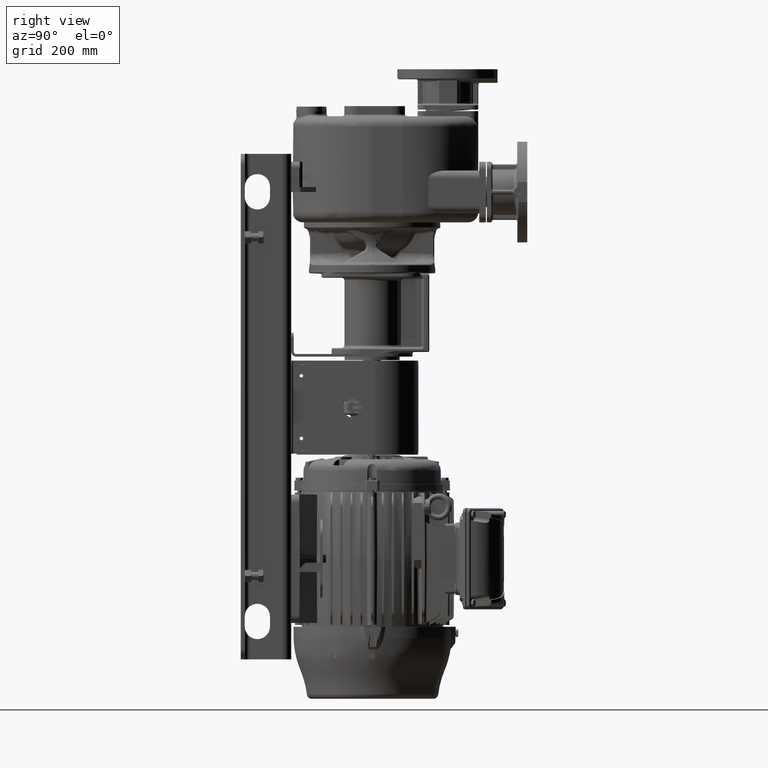
[diagram: clean part render]
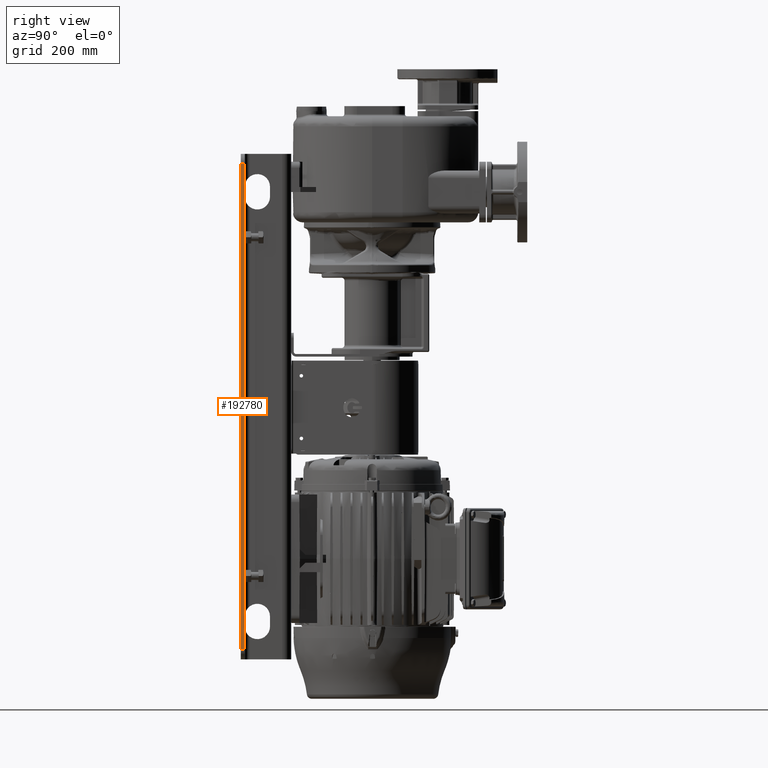
[diagram: same view with one face highlighted and labeled with its STEP entity id]
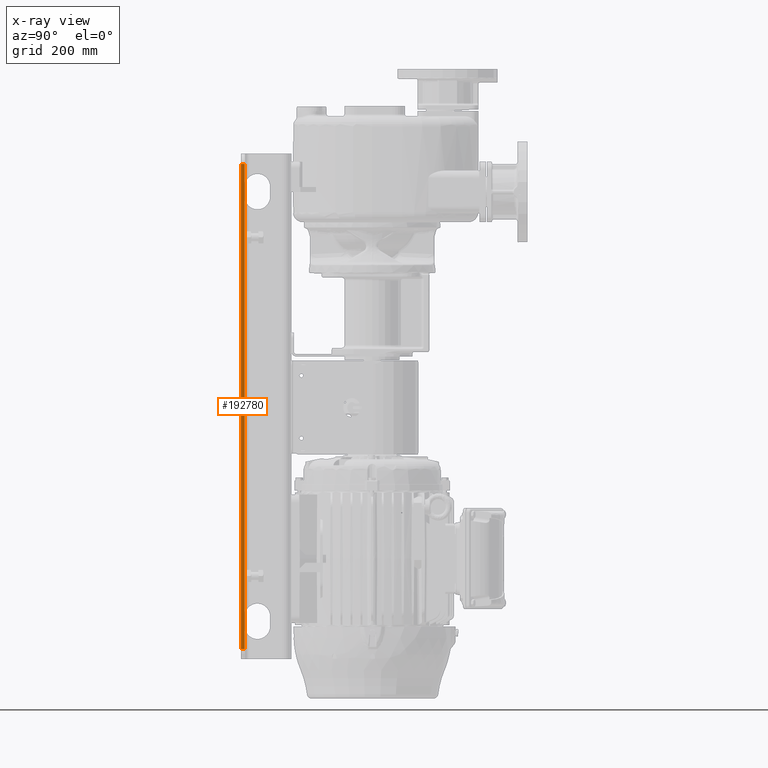
[diagram: x-ray of the same camera — body ghosted, the highlighted face saturated]
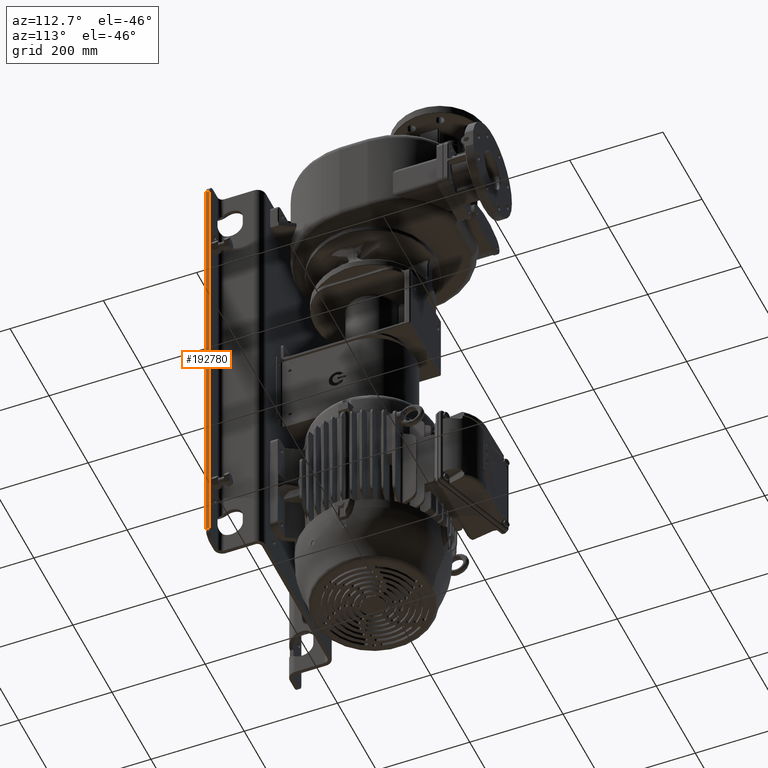
[diagram: same view with one face highlighted and labeled with its STEP entity id]
A machine part, right view. The second image highlights one B-rep face of the part: STEP entity #192780.
The next image is the same camera in x-ray: the body ghosted, the highlighted face saturated — about 0% of this face is hidden behind the body in this view.
A second angle (auxiliary view) of the same face is appended — the face is thin or edge-on in the first view.
In plain terms, the highlighted planar face has unit normal (1, 0, 0).
Its self-contained STEP definition (entity closure, byte-faithful):
#59031=DIRECTION('',(0.E0,1.E0,0.E0));
#59032=VECTOR('',#59031,8.E0);
#59033=CARTESIAN_POINT('',(2.35E2,-1.E2,-9.495E2));
#59034=LINE('',#59033,#59032);
#59035=DIRECTION('',(0.E0,0.E0,-1.E0));
#59036=VECTOR('',#59035,9.6E2);
#59037=CARTESIAN_POINT('',(2.35E2,-1.E2,1.05E1));
#59038=LINE('',#59037,#59036);
#59039=DIRECTION('',(0.E0,1.E0,0.E0));
#59040=VECTOR('',#59039,8.E0);
#59041=CARTESIAN_POINT('',(2.35E2,-1.E2,1.05E1));
#59042=LINE('',#59041,#59040);
#59043=DIRECTION('',(0.E0,0.E0,-1.E0));
#59044=VECTOR('',#59043,9.6E2);
#59045=CARTESIAN_POINT('',(2.35E2,-9.2E1,1.05E1));
#59046=LINE('',#59045,#59044);
#115687=CARTESIAN_POINT('',(2.35E2,-9.2E1,-9.495E2));
#115689=VERTEX_POINT('',#115687);
#115693=CARTESIAN_POINT('',(2.35E2,-1.E2,-9.495E2));
#115694=VERTEX_POINT('',#115693);
#115704=CARTESIAN_POINT('',(2.35E2,-9.2E1,1.05E1));
#115706=VERTEX_POINT('',#115704);
#115707=CARTESIAN_POINT('',(2.35E2,-1.E2,1.05E1));
#115708=VERTEX_POINT('',#115707);
#192768=CARTESIAN_POINT('',(2.35E2,-9.6E1,-4.695E2));
#192769=DIRECTION('',(1.E0,0.E0,0.E0));
#192770=DIRECTION('',(0.E0,0.E0,-1.E0));
#192771=AXIS2_PLACEMENT_3D('',#192768,#192769,#192770);
#192772=PLANE('',#192771);
#192773=ORIENTED_EDGE('',*,*,#192763,.F.);
#192774=ORIENTED_EDGE('',*,*,#192396,.F.);
#192776=ORIENTED_EDGE('',*,*,#192775,.T.);
#192777=ORIENTED_EDGE('',*,*,#192192,.T.);
#192778=EDGE_LOOP('',(#192773,#192774,#192776,#192777));
#192779=FACE_OUTER_BOUND('',#192778,.F.);
#192780=ADVANCED_FACE('',(#192779),#192772,.T.);
#192192=EDGE_CURVE('',#115706,#115689,#59046,.T.);
#192396=EDGE_CURVE('',#115708,#115694,#59038,.T.);
#192763=EDGE_CURVE('',#115694,#115689,#59034,.T.);
#192775=EDGE_CURVE('',#115708,#115706,#59042,.T.);